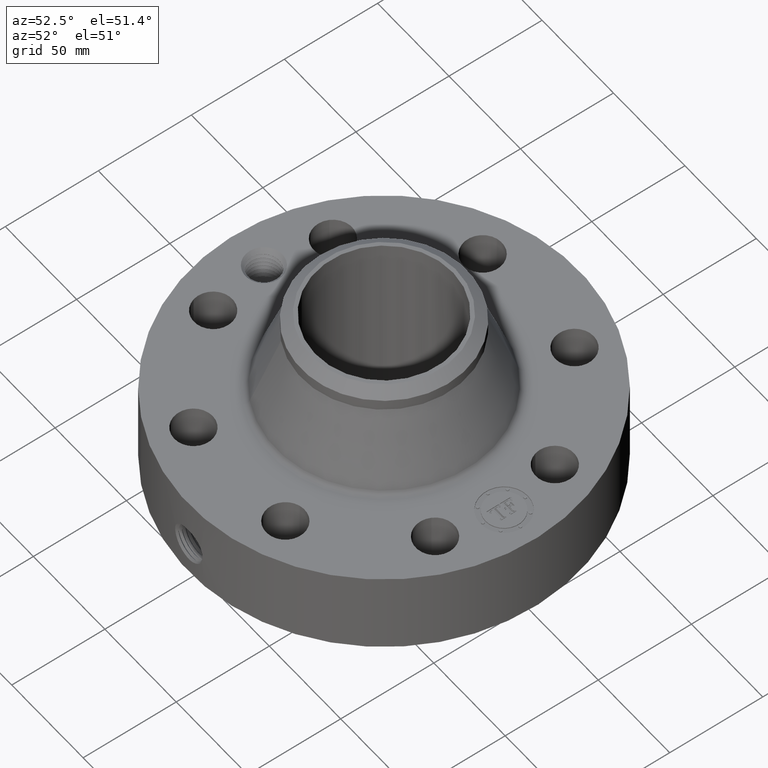
[diagram: clean part render]
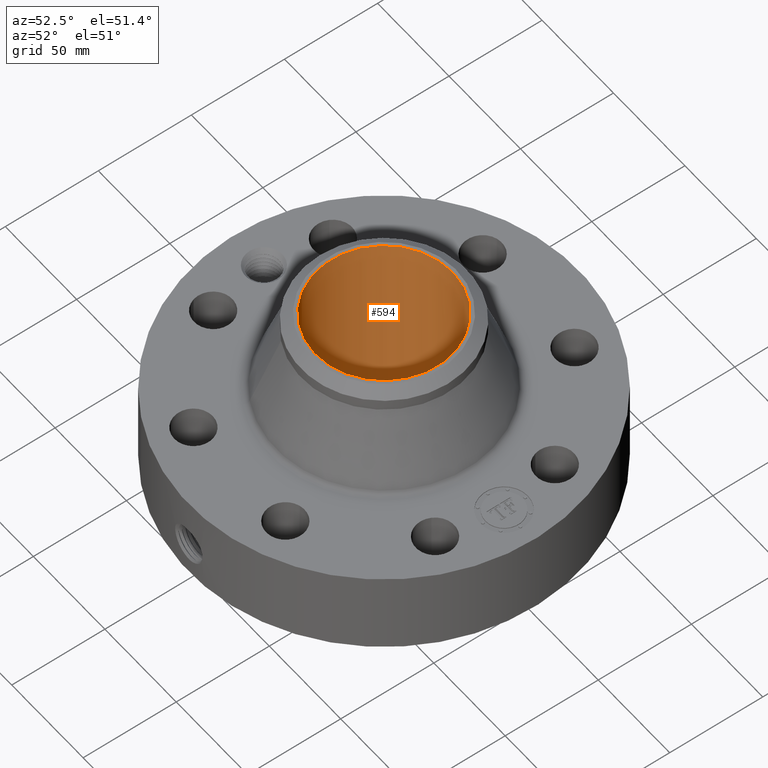
[diagram: same view with one face highlighted and labeled with its STEP entity id]
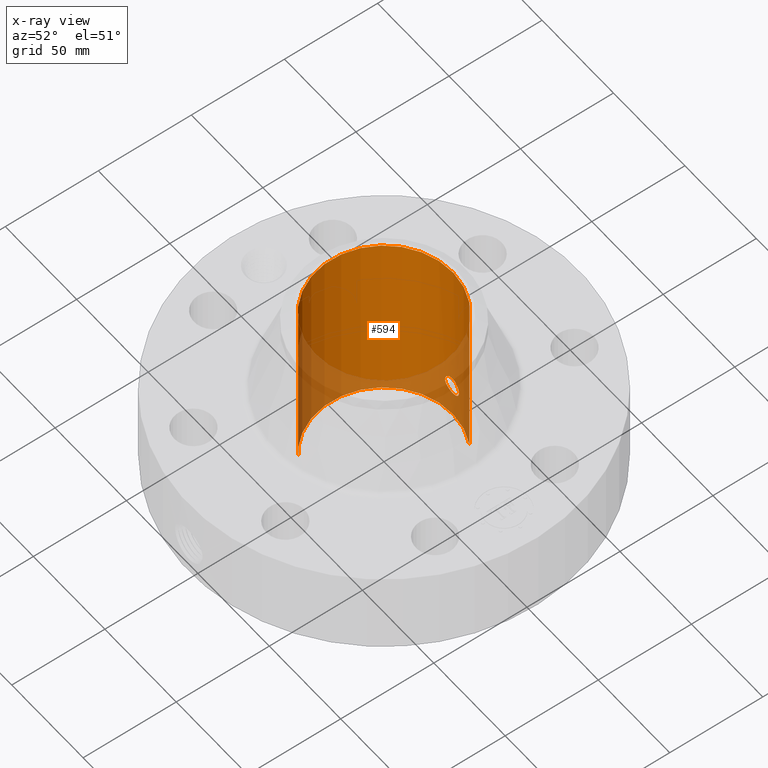
[diagram: x-ray of the same camera — body ghosted, the highlighted face saturated]
A machine part, auxiliary view. The second image highlights one B-rep face of the part: STEP entity #594.
The next image is the same camera in x-ray: the body ghosted, the highlighted face saturated — about 25% of this face is hidden behind the body in this view.
In plain terms, the highlighted cylindrical surface (partial cylindrical patch) has radius 36.83 mm, axis along (0, 0, -1).
Its self-contained STEP definition (entity closure, byte-faithful):
#232=AXIS2_PLACEMENT_3D('Cylinder Axis2P3D',#229,#230,#231) ;
#533=AXIS2_PLACEMENT_3D('Circle Axis2P3D',#531,#532,$) ;
#543=AXIS2_PLACEMENT_3D('Circle Axis2P3D',#541,#542,$) ;
#229=CARTESIAN_POINT('Axis2P3D Location',(0.,0.,1.90650000001)) ;
#238=CARTESIAN_POINT('Vertex',(0.695167030979,1.27249471475,3.81300000002)) ;
#240=CARTESIAN_POINT('Vertex',(-0.695167030979,-1.27249471475,3.81300000002)) ;
#243=CARTESIAN_POINT('Line Origine',(0.695167030979,1.27249471475,1.90650000001)) ;
#247=CARTESIAN_POINT('Vertex',(0.695167030979,1.27249471475,-1.39870617276E-015)) ;
#254=CARTESIAN_POINT('Vertex',(-0.695167030979,-1.27249471475,-1.39870617276E-015)) ;
#257=CARTESIAN_POINT('Line Origine',(-0.695167030979,-1.27249471475,1.90650000001)) ;
#531=CARTESIAN_POINT('Axis2P3D Location',(0.,0.,3.81300000002)) ;
#541=CARTESIAN_POINT('Axis2P3D Location',(0.,0.,-2.23792987641E-015)) ;
#553=CARTESIAN_POINT('Control Point',(0.16674068676,1.44038104104,0.841090852338)) ;
#554=CARTESIAN_POINT('Control Point',(0.155853923544,1.44164130921,0.861018938733)) ;
#555=CARTESIAN_POINT('Control Point',(0.141996407064,1.44314124179,0.879308910262)) ;
#556=CARTESIAN_POINT('Control Point',(0.125490549821,1.44473002661,0.89538238987)) ;
#557=CARTESIAN_POINT('Control Point',(0.0789323896305,1.4484002397,0.92874767956)) ;
#558=CARTESIAN_POINT('Control Point',(0.0226598513547,1.45044587283,0.943338324176)) ;
#559=CARTESIAN_POINT('Control Point',(-0.0125761969547,1.45058029167,0.944257649632)) ;
#560=CARTESIAN_POINT('Control Point',(-0.0866433298162,1.44840984984,0.929110408697)) ;
#561=CARTESIAN_POINT('Control Point',(-0.145946985533,1.44311502434,0.88140792088)) ;
#562=CARTESIAN_POINT('Control Point',(-0.170365601408,1.44006401457,0.847744623756)) ;
#563=CARTESIAN_POINT('Control Point',(-0.193202944241,1.43708588473,0.787080472776)) ;
#564=CARTESIAN_POINT('Control Point',(-0.190291476897,1.43745485961,0.723683103903)) ;
#565=CARTESIAN_POINT('Control Point',(-0.185696721076,1.43808039549,0.7008219164)) ;
#566=CARTESIAN_POINT('Control Point',(-0.177733048214,1.43910854866,0.679030530343)) ;
#567=CARTESIAN_POINT('Control Point',(-0.16674068676,1.44038104104,0.658909147668)) ;
#568=CARTESIAN_POINT('Vertex',(0.16674068676,1.44038104104,0.841090852338)) ;
#570=CARTESIAN_POINT('Vertex',(-0.16674068676,1.44038104104,0.658909147668)) ;
#574=CARTESIAN_POINT('Control Point',(-0.16674068676,1.44038104104,0.658909147668)) ;
#575=CARTESIAN_POINT('Control Point',(-0.155853923536,1.44164130921,0.638981061257)) ;
#576=CARTESIAN_POINT('Control Point',(-0.141996407043,1.44314124179,0.620691089716)) ;
#577=CARTESIAN_POINT('Control Point',(-0.125490549846,1.4447300266,0.604617610154)) ;
#578=CARTESIAN_POINT('Control Point',(-0.0789323896434,1.4484002397,0.571252320448)) ;
#579=CARTESIAN_POINT('Control Point',(-0.0226598513498,1.45044587283,0.556661675828)) ;
#580=CARTESIAN_POINT('Control Point',(0.0125761969577,1.45058029167,0.555742350374)) ;
#581=CARTESIAN_POINT('Control Point',(0.0866433298376,1.44840984984,0.570889591314)) ;
#582=CARTESIAN_POINT('Control Point',(0.145946985565,1.44311502434,0.618592079153)) ;
#583=CARTESIAN_POINT('Control Point',(0.170365601397,1.44006401457,0.652255376219)) ;
#584=CARTESIAN_POINT('Control Point',(0.193202944244,1.43708588473,0.712919527218)) ;
#585=CARTESIAN_POINT('Control Point',(0.190291476896,1.43745485961,0.776316896112)) ;
#586=CARTESIAN_POINT('Control Point',(0.185696721078,1.43808039549,0.799178083602)) ;
#587=CARTESIAN_POINT('Control Point',(0.177733048215,1.43910854866,0.820969469661)) ;
#588=CARTESIAN_POINT('Control Point',(0.16674068676,1.44038104104,0.841090852338)) ;
#230=DIRECTION('Axis2P3D Direction',(0.,0.,-0.0393700787402)) ;
#231=DIRECTION('Axis2P3D XDirection',(-0.0188750212049,-0.0345504945626,0.)) ;
#244=DIRECTION('Vector Direction',(0.,0.,-0.0393700787402)) ;
#258=DIRECTION('Vector Direction',(0.,0.,-0.0393700787402)) ;
#532=DIRECTION('Axis2P3D Direction',(0.,0.,-0.0393700787402)) ;
#542=DIRECTION('Axis2P3D Direction',(0.,0.,-0.0393700787402)) ;
#245=VECTOR('Line Direction',#244,0.0393700787402) ;
#259=VECTOR('Line Direction',#258,0.0393700787402) ;
#547=ORIENTED_EDGE('',*,*,#535,.F.) ;
#548=ORIENTED_EDGE('',*,*,#261,.T.) ;
#549=ORIENTED_EDGE('',*,*,#545,.T.) ;
#550=ORIENTED_EDGE('',*,*,#249,.F.) ;
#591=ORIENTED_EDGE('',*,*,#572,.F.) ;
#592=ORIENTED_EDGE('',*,*,#589,.F.) ;
#593=FACE_BOUND('',#590,.T.) ;
#594=ADVANCED_FACE('PartBody',(#551,#593),#233,.F.) ;
#552=B_SPLINE_CURVE_WITH_KNOTS('',5,(#553,#554,#555,#556,#557,#558,#559,#560,#561,#562,#563,#564,#565,#566,#567),.UNSPECIFIED.,.F.,.U.,(6,3,3,3,6),(0.,4.08473745383,10.1952038072,17.3395947618,21.4639529067),.UNSPECIFIED.) ;
#573=B_SPLINE_CURVE_WITH_KNOTS('',5,(#574,#575,#576,#577,#578,#579,#580,#581,#582,#583,#584,#585,#586,#587,#588),.UNSPECIFIED.,.F.,.U.,(6,3,3,3,6),(0.,4.08473745697,10.1952038105,17.3395947683,21.4639529135),.UNSPECIFIED.) ;
#534=CIRCLE('generated circle',#533,1.45000000001) ;
#544=CIRCLE('generated circle',#543,1.45000000001) ;
#233=CYLINDRICAL_SURFACE('generated cylinder',#232,1.45000000001) ;
#249=EDGE_CURVE('',#239,#248,#246,.T.) ;
#261=EDGE_CURVE('',#241,#255,#260,.T.) ;
#535=EDGE_CURVE('',#241,#239,#534,.T.) ;
#545=EDGE_CURVE('',#255,#248,#544,.T.) ;
#572=EDGE_CURVE('',#569,#571,#552,.T.) ;
#589=EDGE_CURVE('',#571,#569,#573,.T.) ;
#546=EDGE_LOOP('',(#547,#548,#549,#550)) ;
#590=EDGE_LOOP('',(#591,#592)) ;
#551=FACE_OUTER_BOUND('',#546,.T.) ;
#246=LINE('Line',#243,#245) ;
#260=LINE('Line',#257,#259) ;
#239=VERTEX_POINT('',#238) ;
#241=VERTEX_POINT('',#240) ;
#248=VERTEX_POINT('',#247) ;
#255=VERTEX_POINT('',#254) ;
#569=VERTEX_POINT('',#568) ;
#571=VERTEX_POINT('',#570) ;